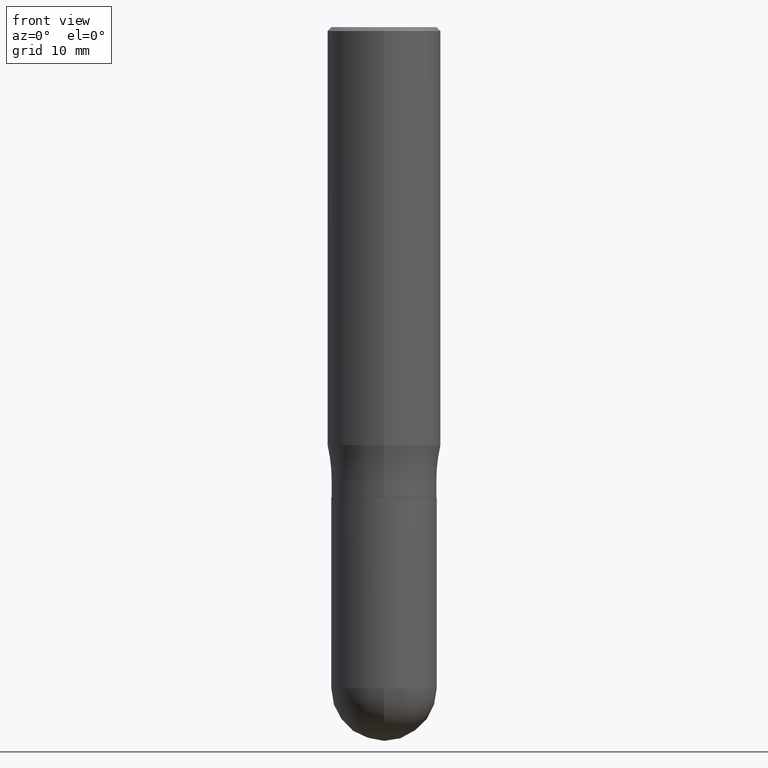
[diagram: clean part render]
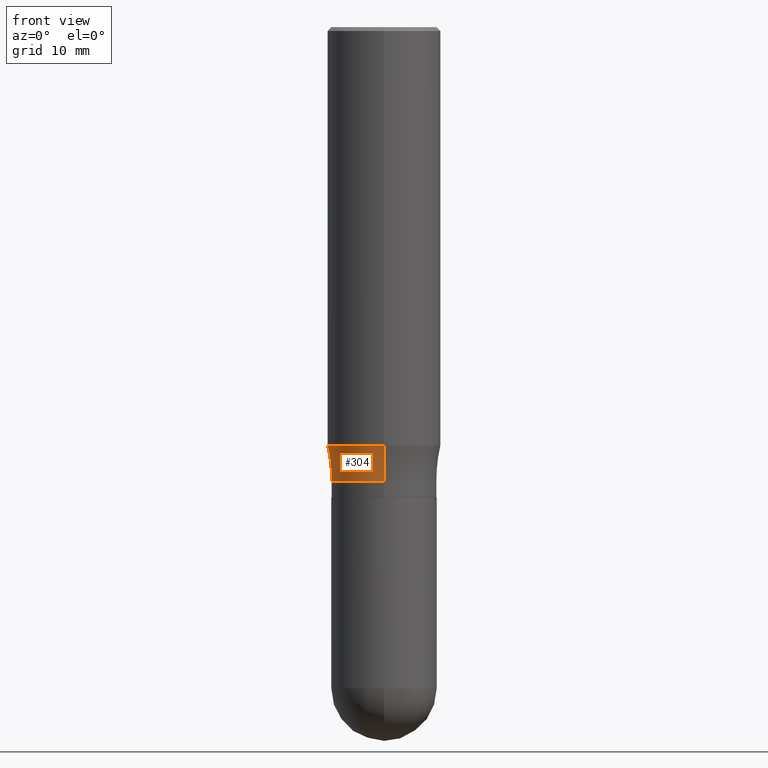
[diagram: same view with one face highlighted and labeled with its STEP entity id]
A machine part, front view. The second image highlights one B-rep face of the part: STEP entity #304.
In plain terms, the highlighted toroidal blend (fillet) surface has major radius 21.0337 mm and minor (blend) radius 15.875 mm.
Its self-contained STEP definition (entity closure, byte-faithful):
#2 = DIRECTION ( 'NONE',  ( -6.982962677686266711E-15, -1.000000000000000000, 3.492555104760498862E-15 ) ) ;
#3 = AXIS2_PLACEMENT_3D ( 'NONE', #290, #445, #2 ) ;
#32 = AXIS2_PLACEMENT_3D ( 'NONE', #56, #374, #377 ) ;
#33 = DIRECTION ( 'NONE',  ( -2.444718999452591209E-29, 3.492555104760499256E-15, 1.000000000000000000 ) ) ;
#56 = CARTESIAN_POINT ( 'NONE',  ( 3.938472406756047000E-29, -5.626549273047013922E-15, -1.611012311696325527 ) ) ;
#58 = CIRCLE ( 'NONE', #347, 0.6250000000000000000 ) ;
#64 = VERTEX_POINT ( 'NONE', #172 ) ;
#86 = CARTESIAN_POINT ( 'NONE',  ( -5.782591393391955660E-15, -0.8281000000000063865, -1.749999999999998002 ) ) ;
#88 = ORIENTED_EDGE ( 'NONE', *, *, #312, .T. ) ;
#124 = ORIENTED_EDGE ( 'NONE', *, *, #136, .T. ) ;
#136 = EDGE_CURVE ( 'NONE', #504, #64, #496, .T. ) ;
#148 = DIRECTION ( 'NONE',  ( -6.982962677686265133E-15, -1.000000000000000000, 4.035225987687237941E-15 ) ) ;
#158 = DIRECTION ( 'NONE',  ( -1.000000000000000000, 6.982962677686265922E-15, -4.883557194083112340E-29 ) ) ;
#166 = DIRECTION ( 'NONE',  ( 7.105427357600999492E-15, 1.000000000000000000, 0.000000000000000000 ) ) ;
#169 = EDGE_LOOP ( 'NONE', ( #230, #88, #124, #434 ) ) ;
#172 = CARTESIAN_POINT ( 'NONE',  ( -1.418239719838039360E-15, -0.2031000000000063310, -1.750000000000000000 ) ) ;
#187 = VERTEX_POINT ( 'NONE', #435 ) ;
#205 = DIRECTION ( 'NONE',  ( -6.982962677686265133E-15, -1.000000000000000000, 0.000000000000000000 ) ) ;
#216 = AXIS2_PLACEMENT_3D ( 'NONE', #428, #33, #148 ) ;
#230 = ORIENTED_EDGE ( 'NONE', *, *, #419, .F. ) ;
#248 = CIRCLE ( 'NONE', #32, 0.2187499999999999445 ) ;
#256 = EDGE_CURVE ( 'NONE', #187, #64, #404, .T. ) ;
#290 = CARTESIAN_POINT ( 'NONE',  ( 4.279570410823991286E-29, -6.110092342975507826E-15, -1.750000000000001110 ) ) ;
#304 = ADVANCED_FACE ( 'NONE', ( #480 ), #475, .F. ) ;
#312 = EDGE_CURVE ( 'NONE', #408, #504, #58, .T. ) ;
#347 = AXIS2_PLACEMENT_3D ( 'NONE', #477, #414, #166 ) ;
#374 = DIRECTION ( 'NONE',  ( -2.444718999452591209E-29, 3.492555104760499256E-15, 1.000000000000000000 ) ) ;
#377 = DIRECTION ( 'NONE',  ( -6.982962677686265922E-15, -1.000000000000000000, 3.746534391310990346E-15 ) ) ;
#383 = CARTESIAN_POINT ( 'NONE',  ( 1.498712265402032939E-15, 0.2030999999999941186, -1.750000000000001554 ) ) ;
#404 = CIRCLE ( 'NONE', #497, 0.6250000000000000000 ) ;
#408 = VERTEX_POINT ( 'NONE', #457 ) ;
#414 = DIRECTION ( 'NONE',  ( 1.000000000000000000, -7.105427357601001070E-15, 4.926328658382019374E-29 ) ) ;
#419 = EDGE_CURVE ( 'NONE', #408, #187, #248, .T. ) ;
#428 = CARTESIAN_POINT ( 'NONE',  ( 4.278258249042036437E-29, -6.111971433330876361E-15, -1.750000000000000666 ) ) ;
#434 = ORIENTED_EDGE ( 'NONE', *, *, #256, .F. ) ;
#435 = CARTESIAN_POINT ( 'NONE',  ( -1.527523085743830611E-15, -0.2187500000000055511, -1.611012311696324639 ) ) ;
#445 = DIRECTION ( 'NONE',  ( -2.444718999452591209E-29, 3.492555104760499256E-15, 1.000000000000000000 ) ) ;
#457 = CARTESIAN_POINT ( 'NONE',  ( 1.554312234475258205E-15, 0.2187499999999942824, -1.611012311696326194 ) ) ;
#475 = TOROIDAL_SURFACE ( 'NONE', #3, 0.8281000000000002803, 0.6250000000000000000 ) ;
#477 = CARTESIAN_POINT ( 'NONE',  ( 5.884004394829433441E-15, 0.8280999999999940631, -1.750000000000003997 ) ) ;
#480 = FACE_OUTER_BOUND ( 'NONE', #169, .T. ) ;
#496 = CIRCLE ( 'NONE', #216, 0.2031000000000002248 ) ;
#497 = AXIS2_PLACEMENT_3D ( 'NONE', #86, #158, #205 ) ;
#504 = VERTEX_POINT ( 'NONE', #383 ) ;